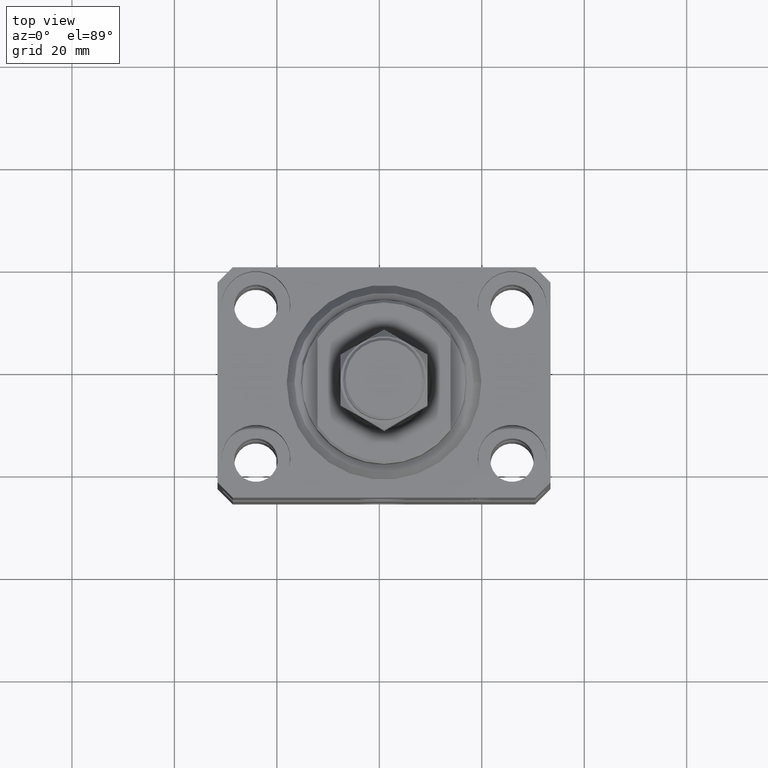
[diagram: clean part render]
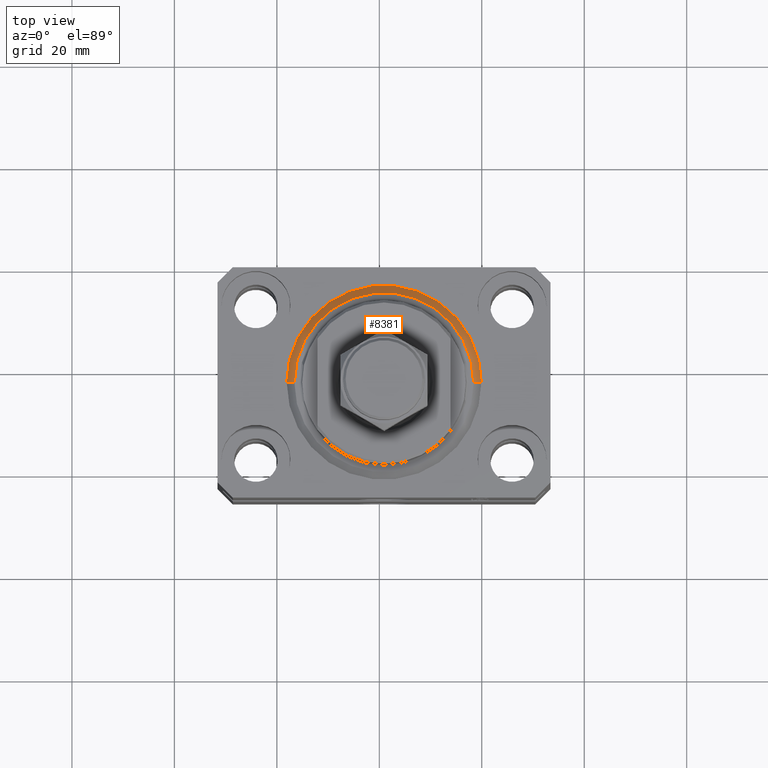
[diagram: same view with one face highlighted and labeled with its STEP entity id]
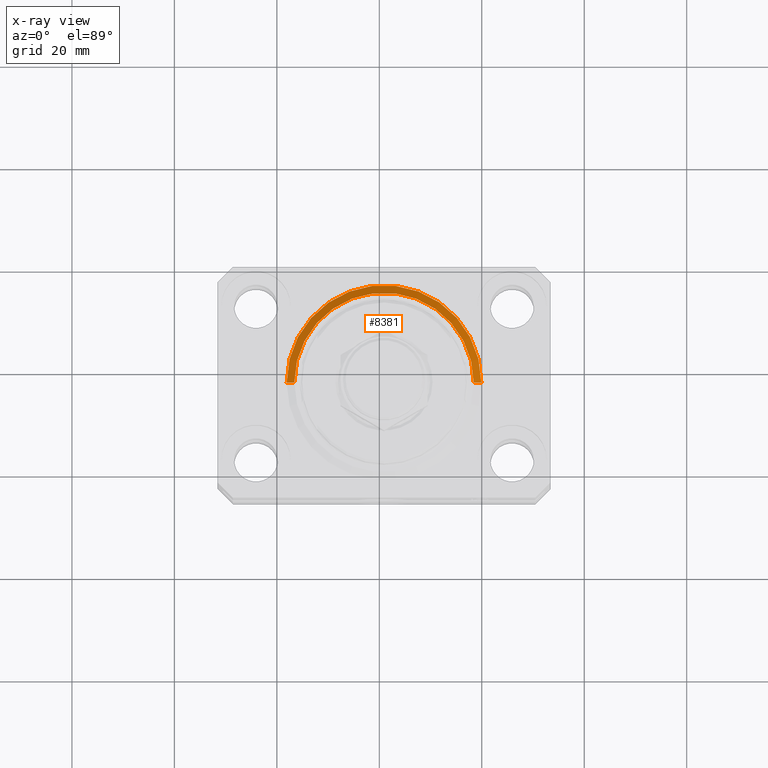
[diagram: x-ray of the same camera — body ghosted, the highlighted face saturated]
A machine part, top view. The second image highlights one B-rep face of the part: STEP entity #8381.
The next image is the same camera in x-ray: the body ghosted, the highlighted face saturated — about 0% of this face is hidden behind the body in this view.
In plain terms, the highlighted conical surface has half-angle 45 deg.
Its self-contained STEP definition (entity closure, byte-faithful):
#184 = CARTESIAN_POINT ( 'NONE',  ( 19.00000000000000000, 2.326828918379970970E-15, 1.500000000000001332 ) ) ;
#558 = LINE ( 'NONE', #17329, #10761 ) ;
#2475 = EDGE_CURVE ( 'NONE', #20661, #31602, #38571, .T. ) ;
#4015 = ORIENTED_EDGE ( 'NONE', *, *, #32701, .T. ) ;
#5622 = DIRECTION ( 'NONE',  ( -0.7071067811865483499, 8.659560562354942719E-17, 0.7071067811865467956 ) ) ;
#5859 = CARTESIAN_POINT ( 'NONE',  ( -19.00000000000000000, 2.326828918379970970E-15, 1.500000000000001332 ) ) ;
#7901 = VERTEX_POINT ( 'NONE', #16773 ) ;
#8054 = AXIS2_PLACEMENT_3D ( 'NONE', #9914, #38810, #35756 ) ;
#8381 = ADVANCED_FACE ( 'NONE', ( #12199 ), #37113, .T. ) ;
#9914 = CARTESIAN_POINT ( 'NONE',  ( 0.000000000000000000, 0.000000000000000000, 1.500000000000001332 ) ) ;
#10761 = VECTOR ( 'NONE', #39467, 1000.000000000000000 ) ;
#12199 = FACE_OUTER_BOUND ( 'NONE', #43228, .T. ) ;
#12885 = VECTOR ( 'NONE', #5622, 1000.000000000000000 ) ;
#13452 = CIRCLE ( 'NONE', #41753, 17.49999999999999645 ) ;
#14224 = EDGE_CURVE ( 'NONE', #7901, #19570, #13452, .T. ) ;
#16773 = CARTESIAN_POINT ( 'NONE',  ( -17.49999999999999645, 2.234980408443919215E-15, 0.000000000000000000 ) ) ;
#17329 = CARTESIAN_POINT ( 'NONE',  ( 19.00000000000000000, 0.000000000000000000, 1.500000000000001332 ) ) ;
#17748 = AXIS2_PLACEMENT_3D ( 'NONE', #29236, #19408, #26430 ) ;
#19408 = DIRECTION ( 'NONE',  ( -0.000000000000000000, -0.000000000000000000, 1.000000000000000000 ) ) ;
#19570 = VERTEX_POINT ( 'NONE', #22539 ) ;
#20238 = ORIENTED_EDGE ( 'NONE', *, *, #2475, .F. ) ;
#20661 = VERTEX_POINT ( 'NONE', #184 ) ;
#21254 = CARTESIAN_POINT ( 'NONE',  ( -19.00000000000000000, 0.000000000000000000, 1.500000000000001332 ) ) ;
#22539 = CARTESIAN_POINT ( 'NONE',  ( 17.49999999999999645, 0.000000000000000000, 0.000000000000000000 ) ) ;
#26430 = DIRECTION ( 'NONE',  ( 1.000000000000000000, 0.000000000000000000, 0.000000000000000000 ) ) ;
#29236 = CARTESIAN_POINT ( 'NONE',  ( 0.000000000000000000, 0.000000000000000000, 1.500000000000001332 ) ) ;
#30543 = LINE ( 'NONE', #5859, #12885 ) ;
#31602 = VERTEX_POINT ( 'NONE', #21254 ) ;
#32701 = EDGE_CURVE ( 'NONE', #7901, #31602, #30543, .T. ) ;
#32825 = ORIENTED_EDGE ( 'NONE', *, *, #14224, .F. ) ;
#33614 = CARTESIAN_POINT ( 'NONE',  ( 0.000000000000000000, 0.000000000000000000, 0.000000000000000000 ) ) ;
#35756 = DIRECTION ( 'NONE',  ( 1.000000000000000000, 0.000000000000000000, 0.000000000000000000 ) ) ;
#37113 = CONICAL_SURFACE ( 'NONE', #17748, 19.00000000000000000, 0.7853981633974492782 ) ;
#37340 = DIRECTION ( 'NONE',  ( 1.000000000000000000, 0.000000000000000000, 0.000000000000000000 ) ) ;
#38571 = CIRCLE ( 'NONE', #8054, 19.00000000000000000 ) ;
#38810 = DIRECTION ( 'NONE',  ( -0.000000000000000000, -0.000000000000000000, 1.000000000000000000 ) ) ;
#39335 = EDGE_CURVE ( 'NONE', #19570, #20661, #558, .T. ) ;
#39467 = DIRECTION ( 'NONE',  ( 0.7071067811865483499, 0.000000000000000000, 0.7071067811865467956 ) ) ;
#40851 = DIRECTION ( 'NONE',  ( -0.000000000000000000, -0.000000000000000000, -1.000000000000000000 ) ) ;
#41753 = AXIS2_PLACEMENT_3D ( 'NONE', #33614, #40851, #37340 ) ;
#43228 = EDGE_LOOP ( 'NONE', ( #32825, #4015, #20238, #45643 ) ) ;
#45643 = ORIENTED_EDGE ( 'NONE', *, *, #39335, .F. ) ;